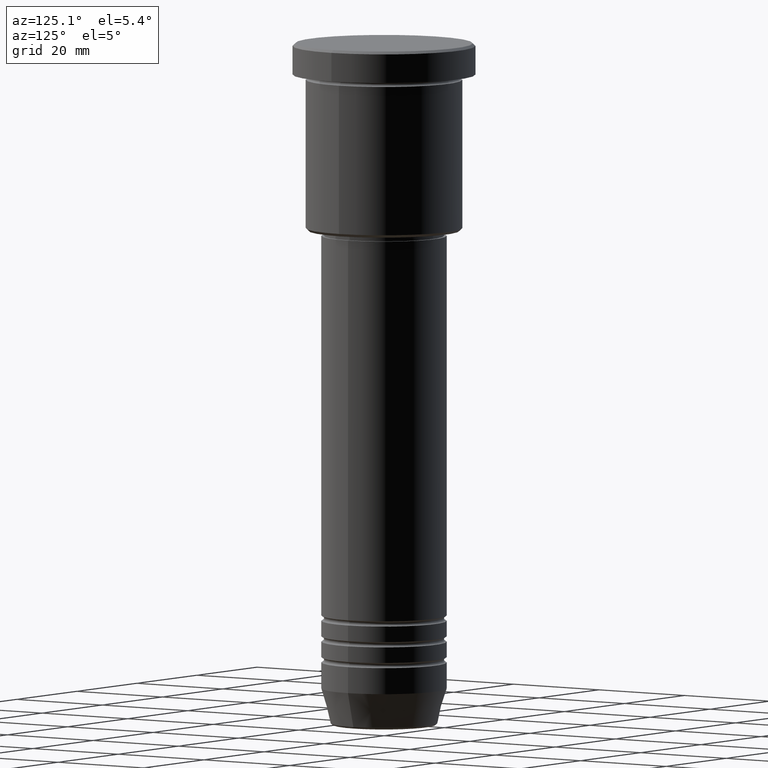
[diagram: clean part render]
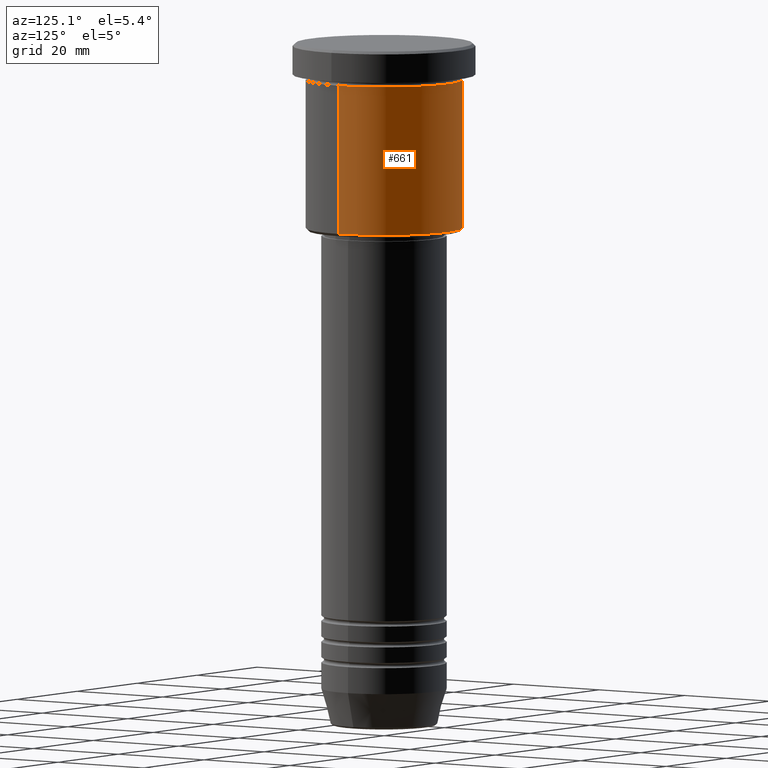
[diagram: same view with one face highlighted and labeled with its STEP entity id]
A machine part, auxiliary view. The second image highlights one B-rep face of the part: STEP entity #661.
In plain terms, the highlighted cylindrical surface (partial cylindrical patch) has radius 15 mm, axis along (-0, -0, 1).
Its self-contained STEP definition (entity closure, byte-faithful):
#12 = ORIENTED_EDGE ( 'NONE', *, *, #64, .F. ) ;
#22 = VERTEX_POINT ( 'NONE', #927 ) ;
#23 = CARTESIAN_POINT ( 'NONE',  ( 15.00000000000000000, 0.000000000000000000, 0.000000000000000000 ) ) ;
#64 = EDGE_CURVE ( 'NONE', #1027, #22, #911, .T. ) ;
#96 = LINE ( 'NONE', #102, #712 ) ;
#102 = CARTESIAN_POINT ( 'NONE',  ( -15.00000000000000000, 1.836970198721029589E-15, 0.000000000000000000 ) ) ;
#110 = VECTOR ( 'NONE', #1004, 1000.000000000000000 ) ;
#116 = VERTEX_POINT ( 'NONE', #1104 ) ;
#127 = CYLINDRICAL_SURFACE ( 'NONE', #500, 15.00000000000000000 ) ;
#138 = FACE_OUTER_BOUND ( 'NONE', #638, .T. ) ;
#221 = CARTESIAN_POINT ( 'NONE',  ( 0.000000000000000000, 0.000000000000000000, -35.50000000000001421 ) ) ;
#248 = AXIS2_PLACEMENT_3D ( 'NONE', #221, #970, #703 ) ;
#271 = ORIENTED_EDGE ( 'NONE', *, *, #483, .T. ) ;
#322 = CARTESIAN_POINT ( 'NONE',  ( 15.00000000000000000, 0.000000000000000000, -35.50000000000001421 ) ) ;
#324 = CARTESIAN_POINT ( 'NONE',  ( 0.000000000000000000, 0.000000000000000000, 0.000000000000000000 ) ) ;
#424 = DIRECTION ( 'NONE',  ( 1.000000000000000000, 0.000000000000000000, 0.000000000000000000 ) ) ;
#475 = DIRECTION ( 'NONE',  ( -0.000000000000000000, -0.000000000000000000, 1.000000000000000000 ) ) ;
#483 = EDGE_CURVE ( 'NONE', #116, #1074, #96, .T. ) ;
#500 = AXIS2_PLACEMENT_3D ( 'NONE', #324, #762, #956 ) ;
#632 = CIRCLE ( 'NONE', #248, 15.00000000000000000 ) ;
#638 = EDGE_LOOP ( 'NONE', ( #1089, #271, #1029, #12 ) ) ;
#654 = EDGE_CURVE ( 'NONE', #22, #1074, #809, .T. ) ;
#661 = ADVANCED_FACE ( 'NONE', ( #138 ), #127, .T. ) ;
#703 = DIRECTION ( 'NONE',  ( -1.000000000000000000, 0.000000000000000000, 0.000000000000000000 ) ) ;
#712 = VECTOR ( 'NONE', #475, 1000.000000000000000 ) ;
#762 = DIRECTION ( 'NONE',  ( -0.000000000000000000, -0.000000000000000000, 1.000000000000000000 ) ) ;
#809 = CIRCLE ( 'NONE', #903, 15.00000000000000000 ) ;
#903 = AXIS2_PLACEMENT_3D ( 'NONE', #1142, #1146, #424 ) ;
#911 = LINE ( 'NONE', #23, #110 ) ;
#927 = CARTESIAN_POINT ( 'NONE',  ( 15.00000000000000000, 0.000000000000000000, -6.999999999999995559 ) ) ;
#941 = EDGE_CURVE ( 'NONE', #1027, #116, #632, .T. ) ;
#956 = DIRECTION ( 'NONE',  ( 1.000000000000000000, 0.000000000000000000, 0.000000000000000000 ) ) ;
#970 = DIRECTION ( 'NONE',  ( -0.000000000000000000, -0.000000000000000000, 1.000000000000000000 ) ) ;
#1004 = DIRECTION ( 'NONE',  ( -0.000000000000000000, -0.000000000000000000, 1.000000000000000000 ) ) ;
#1027 = VERTEX_POINT ( 'NONE', #322 ) ;
#1029 = ORIENTED_EDGE ( 'NONE', *, *, #654, .F. ) ;
#1060 = CARTESIAN_POINT ( 'NONE',  ( -15.00000000000000000, 1.836970198721029589E-15, -6.999999999999995559 ) ) ;
#1074 = VERTEX_POINT ( 'NONE', #1060 ) ;
#1089 = ORIENTED_EDGE ( 'NONE', *, *, #941, .T. ) ;
#1104 = CARTESIAN_POINT ( 'NONE',  ( -15.00000000000000000, 1.836970198721029589E-15, -35.50000000000001421 ) ) ;
#1142 = CARTESIAN_POINT ( 'NONE',  ( 0.000000000000000000, 0.000000000000000000, -6.999999999999995559 ) ) ;
#1146 = DIRECTION ( 'NONE',  ( -0.000000000000000000, -0.000000000000000000, 1.000000000000000000 ) ) ;